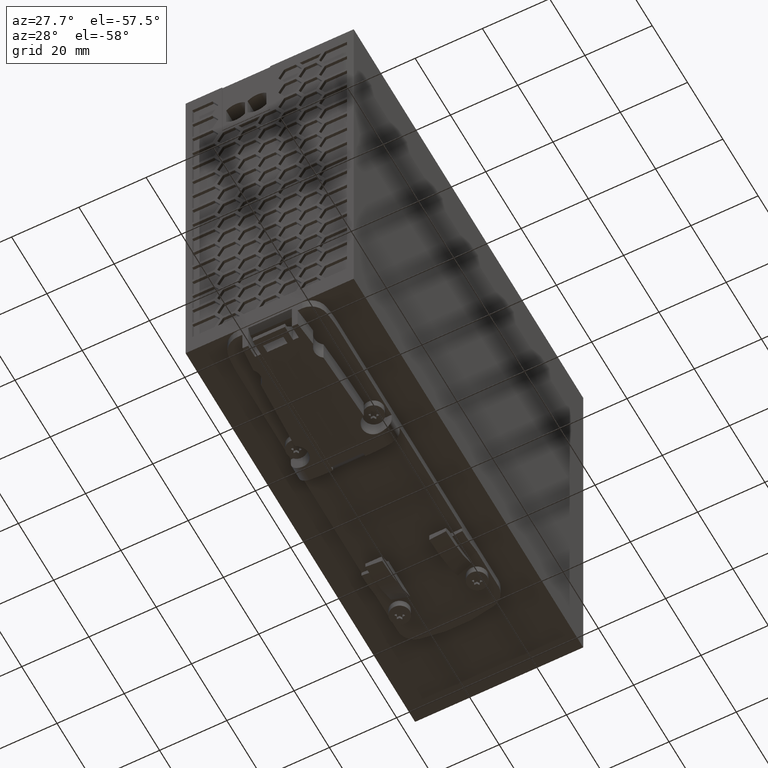
[diagram: clean part render]
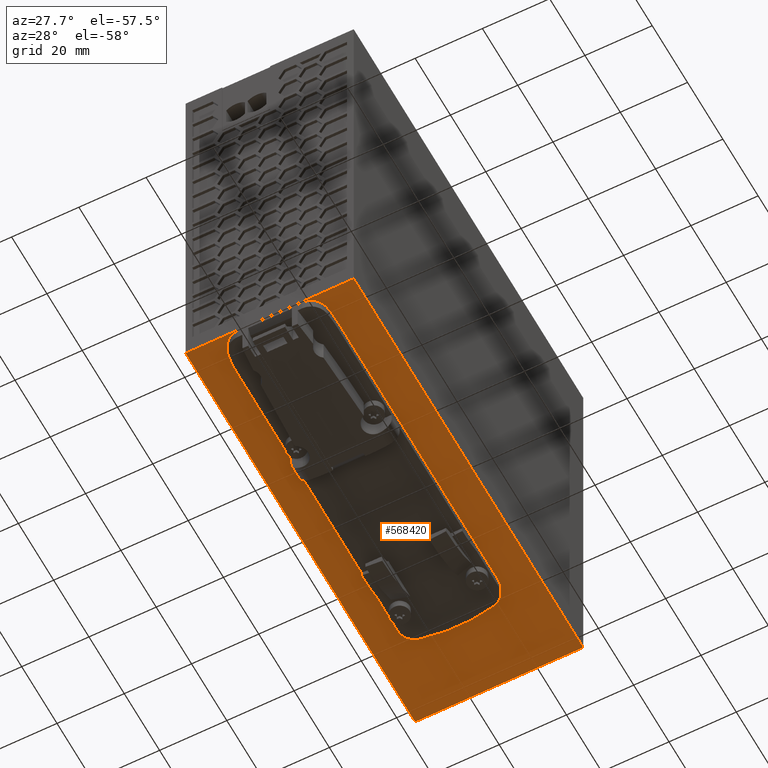
[diagram: same view with one face highlighted and labeled with its STEP entity id]
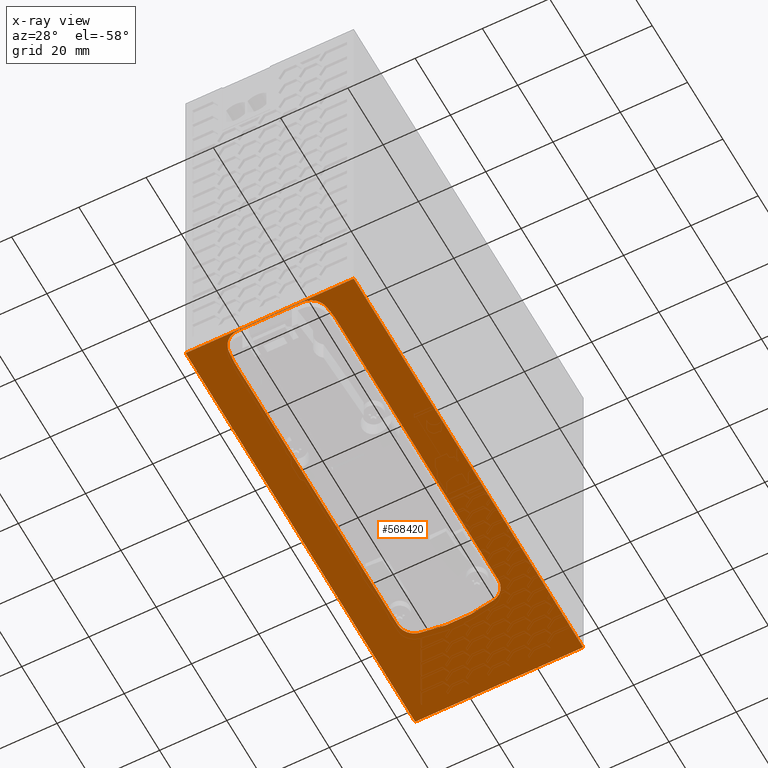
[diagram: x-ray of the same camera — body ghosted, the highlighted face saturated]
A machine part, auxiliary view. The second image highlights one B-rep face of the part: STEP entity #568420.
The next image is the same camera in x-ray: the body ghosted, the highlighted face saturated — about 0% of this face is hidden behind the body in this view.
In plain terms, the highlighted planar face has unit normal (0, -0, 1).
Its self-contained STEP definition (entity closure, byte-faithful):
#200=CARTESIAN_POINT('',(-6.99811084512215,0.,9.59999999999972));
#210=VERTEX_POINT('',#200);
#240=CARTESIAN_POINT('',(-6.99900438843758,65.,9.59999999999972));
#250=DIRECTION('',(1.37468202360801E-5,-0.999999999905512,0.));
#260=VECTOR('',#250,1.);
#270=LINE('',#240,#260);
#280=CARTESIAN_POINT('',(-6.99989793175301,130.,9.59999999999972));
#290=VERTEX_POINT('',#280);
#300=EDGE_CURVE('',#290,#210,#270,.T.);
#1040=CARTESIAN_POINT('',(43.0001020729714,130.,9.59999999999972));
#1050=VERTEX_POINT('',#1040);
#1100=CARTESIAN_POINT('',(43.0009956162868,65.,9.59999999999972));
#1110=DIRECTION('',(-1.37468202360801E-5,0.999999999905512,0.));
#1120=VECTOR('',#1110,1.);
#1130=LINE('',#1100,#1120);
#1140=CARTESIAN_POINT('',(43.0018891596022,0.,9.59999999999972));
#1150=VERTEX_POINT('',#1140);
#1160=EDGE_CURVE('',#1150,#1050,#1130,.T.);
#5600=CARTESIAN_POINT('',(0.,0.,9.59999999999972));
#5610=DIRECTION('',(-1.,0.,0.));
#5620=VECTOR('',#5610,1.);
#5630=LINE('',#5600,#5620);
#5640=EDGE_CURVE('',#1150,#210,#5630,.T.);
#76180=CARTESIAN_POINT('',(0.,130.,9.59999999999972));
#76190=DIRECTION('',(1.,0.,0.));
#76200=VECTOR('',#76190,1.);
#76210=LINE('',#76180,#76200);
#76220=EDGE_CURVE('',#290,#1050,#76210,.T.);
#567420=CARTESIAN_POINT('',(0.,0.,9.59999999999972));
#567430=DIRECTION('',(-0.,0.,1.));
#567440=DIRECTION('',(0.,-1.,0.));
#567450=AXIS2_PLACEMENT_3D('',#567420,#567430,#567440);
#567460=PLANE('',#567450);
#567470=CARTESIAN_POINT('',(8.36080154088798,5.1985886361894,
9.59999999999972));
#567480=DIRECTION('',(9.95682444457783E-60,-3.26265223399926E-55,-1.));
#567490=DIRECTION('',(-1.,1.38913403349705E-19,-9.95682444457787E-60));
#567500=AXIS2_PLACEMENT_3D('',#567470,#567480,#567490);
#567510=CIRCLE('',#567500,4.99999999999992);
#567520=CARTESIAN_POINT('',(8.36087027498926,0.198588636661881,
9.59999999999972));
#567530=VERTEX_POINT('',#567520);
#567540=CARTESIAN_POINT('',(3.41209476745906,4.48423489285386,
9.59999999999972));
#567550=VERTEX_POINT('',#567540);
#567560=EDGE_CURVE('',#567530,#567550,#567510,.T.);
#567570=ORIENTED_EDGE('',*,*,#567560,.F.);
#567580=CARTESIAN_POINT('',(43.0017489548897,10.1990648395388,
9.59999999999972));
#567590=DIRECTION('',(9.95682444457783E-60,-3.26265223399926E-55,-1.));
#567600=DIRECTION('',(-1.,1.38913403349705E-19,-9.95682444457787E-60));
#567610=AXIS2_PLACEMENT_3D('',#567580,#567590,#567600);
#567620=CIRCLE('',#567610,39.9999999999984);
#567630=CARTESIAN_POINT('',(3.00174895867079,10.1985149667294,
9.59999999999972));
#567640=VERTEX_POINT('',#567630);
#567650=EDGE_CURVE('',#567550,#567640,#567620,.T.);
#567660=ORIENTED_EDGE('',*,*,#567650,.F.);
#567670=CARTESIAN_POINT('',(3.0009956125073,65.,9.59999999999972));
#567680=DIRECTION('',(1.37468202359206E-5,-0.999999999905512,0.));
#567690=VECTOR('',#567680,1.);
#567700=LINE('',#567670,#567690);
#567710=CARTESIAN_POINT('',(3.00049971882965,101.073336895104,
9.59999999999972));
#567720=VERTEX_POINT('',#567710);
#567730=EDGE_CURVE('',#567720,#567640,#567700,.T.);
#567740=ORIENTED_EDGE('',*,*,#567730,.T.);
#567750=CARTESIAN_POINT('',(8.00049971835728,101.073405629205,
9.59999999999972));
#567760=DIRECTION('',(9.95682444457783E-60,-3.26265223399926E-55,-1.));
#567770=DIRECTION('',(-1.,1.38913403349705E-19,-9.95682444457787E-60));
#567780=AXIS2_PLACEMENT_3D('',#567750,#567760,#567770);
#567790=CIRCLE('',#567780,5.00000000000008);
#567800=CARTESIAN_POINT('',(6.88932159187442,105.948370569717,
9.59999999999972));
#567810=VERTEX_POINT('',#567800);
#567820=EDGE_CURVE('',#567720,#567810,#567790,.T.);
#567830=ORIENTED_EDGE('',*,*,#567820,.F.);
#567840=CARTESIAN_POINT('',(18.0011028567024,57.1987211645928,
9.59999999999972));
#567850=DIRECTION('',(9.95682444457783E-60,-3.26265223399926E-55,-1.));
#567860=DIRECTION('',(-1.,1.38913403349705E-19,-9.95682444457787E-60));
#567870=AXIS2_PLACEMENT_3D('',#567840,#567850,#567860);
#567880=CIRCLE('',#567870,49.9999999999993);
#567890=CARTESIAN_POINT('',(29.1115438119969,105.948676054611,
9.59999999999972));
#567900=VERTEX_POINT('',#567890);
#567910=EDGE_CURVE('',#567810,#567900,#567880,.T.);
#567920=ORIENTED_EDGE('',*,*,#567910,.F.);
#567930=CARTESIAN_POINT('',(28.0004997164675,101.073680565609,
9.59999999999972));
#567940=DIRECTION('',(9.95682444457783E-60,-3.26265223399926E-55,-1.));
#567950=DIRECTION('',(-1.,1.38913403349705E-19,-9.95682444457787E-60));
#567960=AXIS2_PLACEMENT_3D('',#567930,#567940,#567950);
#567970=CIRCLE('',#567960,4.99999999999995);
#567980=CARTESIAN_POINT('',(33.000499715995,101.073749299711,
9.59999999999972));
#567990=VERTEX_POINT('',#567980);
#568000=EDGE_CURVE('',#567900,#567990,#567970,.T.);
#568010=ORIENTED_EDGE('',*,*,#568000,.F.);
#568020=CARTESIAN_POINT('',(33.0009956153419,65.,9.59999999999972));
#568030=DIRECTION('',(-1.37468202358229E-5,0.999999999905513,0.));
#568040=VECTOR('',#568030,1.);
#568050=LINE('',#568020,#568040);
#568060=CARTESIAN_POINT('',(33.0017489558361,10.1989273713365,
9.59999999999972));
#568070=VERTEX_POINT('',#568060);
#568080=EDGE_CURVE('',#568070,#567990,#568050,.T.);
#568090=ORIENTED_EDGE('',*,*,#568080,.T.);
#568100=CARTESIAN_POINT('',(-6.99825104038126,10.1983774985268,
9.59999999999972));
#568110=DIRECTION('',(9.95682444457783E-60,-3.26265223399926E-55,-1.));
#568120=DIRECTION('',(-1.,1.38913403349705E-19,-9.95682444457787E-60));
#568130=AXIS2_PLACEMENT_3D('',#568100,#568110,#568120);
#568140=CIRCLE('',#568130,39.9999999999969);
#568150=CARTESIAN_POINT('',(32.5915602535649,4.48463601772052,
9.59999999999972));
#568160=VERTEX_POINT('',#568150);
#568170=EDGE_CURVE('',#568070,#568160,#568140,.T.);
#568180=ORIENTED_EDGE('',*,*,#568170,.F.);
#568190=CARTESIAN_POINT('',(27.6428338418213,5.19885370282137,
9.59999999999972));
#568200=DIRECTION('',(9.95682444457783E-60,-3.26265223399926E-55,-1.));
#568210=DIRECTION('',(-1.,1.38913403349705E-19,-9.95682444457787E-60));
#568220=AXIS2_PLACEMENT_3D('',#568190,#568200,#568210);
#568230=CIRCLE('',#568220,4.99999999999991);
#568240=CARTESIAN_POINT('',(27.6429025759224,0.198853703293778,
9.59999999999972));
#568250=VERTEX_POINT('',#568240);
#568260=EDGE_CURVE('',#568160,#568250,#568230,.T.);
#568270=ORIENTED_EDGE('',*,*,#568260,.F.);
#568280=CARTESIAN_POINT('',(0.,0.198473701281159,9.59999999999972));
#568290=DIRECTION('',(0.999999999905513,1.37468202386569E-5,0.));
#568300=VECTOR('',#568290,1.);
#568310=LINE('',#568280,#568300);
#568320=EDGE_CURVE('',#567530,#568250,#568310,.T.);
#568330=ORIENTED_EDGE('',*,*,#568320,.T.);
#568340=EDGE_LOOP('',(#568330,#568270,#568180,#568090,#568010,#567920,
#567830,#567740,#567660,#567570));
#568350=FACE_BOUND('',#568340,.T.);
#568360=ORIENTED_EDGE('',*,*,#1160,.F.);
#568370=ORIENTED_EDGE('',*,*,#76220,.T.);
#568380=ORIENTED_EDGE('',*,*,#300,.F.);
#568390=ORIENTED_EDGE('',*,*,#5640,.T.);
#568400=EDGE_LOOP('',(#568390,#568380,#568370,#568360));
#568410=FACE_OUTER_BOUND('',#568400,.T.);
#568420=ADVANCED_FACE('',(#568350,#568410),#567460,.F.);